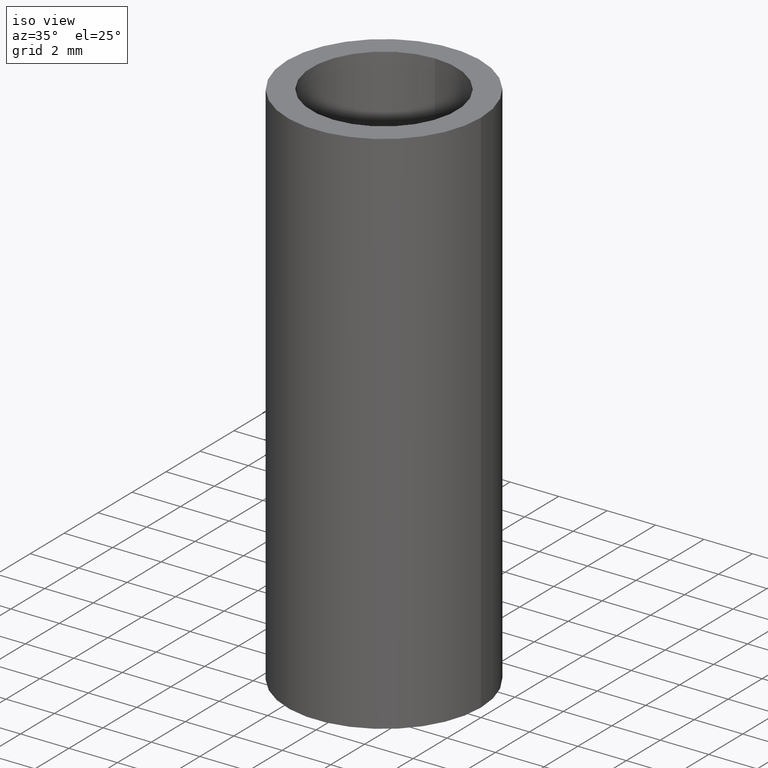
[diagram: clean part render]
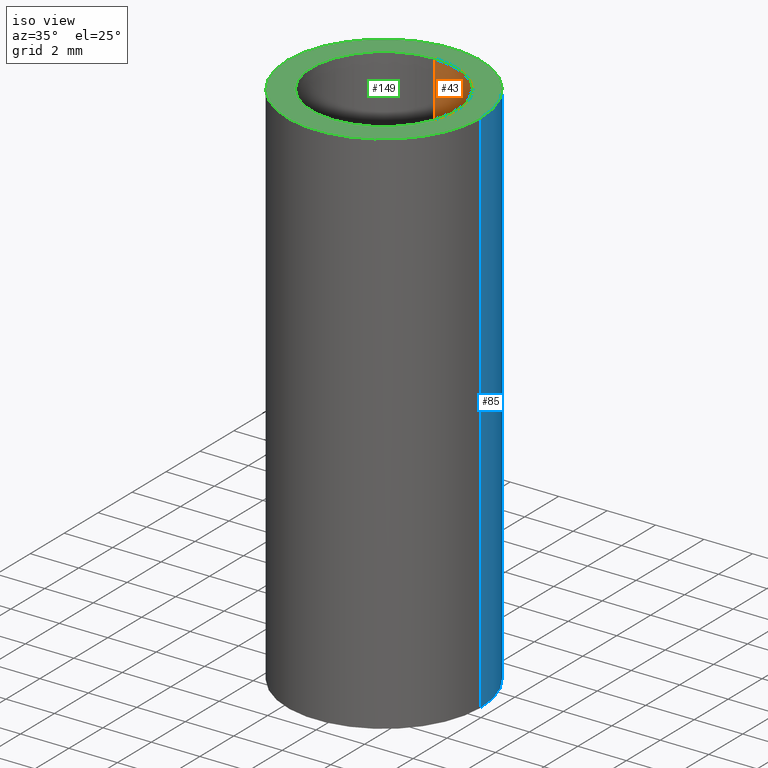
[diagram: same view with three faces highlighted in distinct colors, each labeled with its STEP entity id]
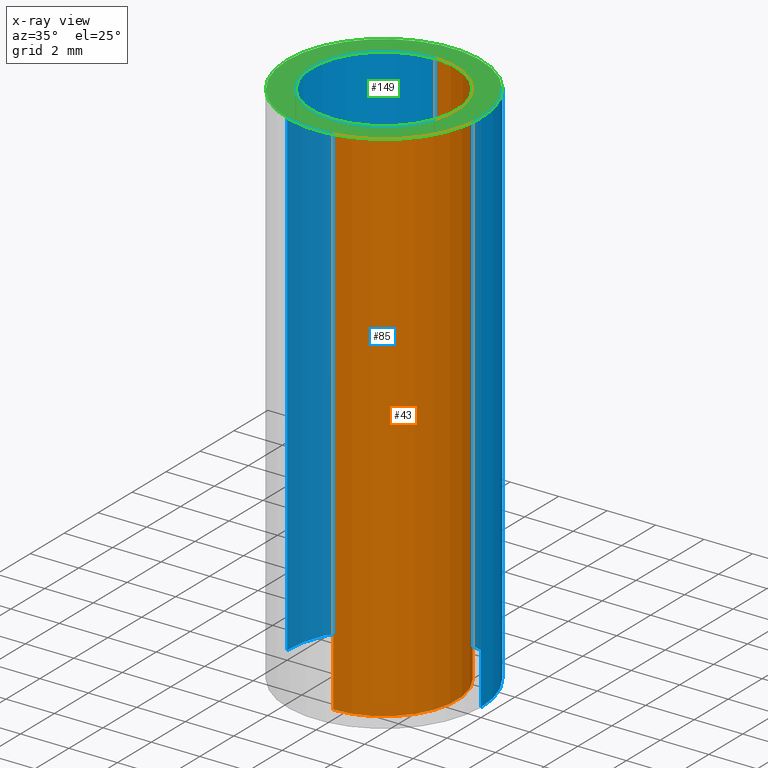
[diagram: x-ray of the same camera — body ghosted, the three highlighted faces saturated]
A machine part, iso view with three faces highlighted in distinct colors.
The next image is the same camera in x-ray (body ghosted, the three faces saturated) — at least one of them is partly hidden behind the body in this view.
Their STEP definitions:

[orange] entity #43 — the highlighted cylindrical surface (partial cylindrical patch) has radius 3 mm, axis along (0, 0, -1).
#2=CARTESIAN_POINT('',(0.0,0.0,22.000000010000001));
#3=DIRECTION('',(0.0,0.0,-1.0));
#4=DIRECTION('',(-1.0,0.0,0.0));
#5=AXIS2_PLACEMENT_3D('',#2,#3,#4);
#6=CYLINDRICAL_SURFACE('',#5,3.0);
#7=CARTESIAN_POINT('',(-3.673940E-016,3.0,22.0));
#8=VERTEX_POINT('',#7);
#9=CARTESIAN_POINT('',(0.0,-3.0,22.0));
#10=VERTEX_POINT('',#9);
#11=CARTESIAN_POINT('',(0.0,0.0,22.0));
#12=DIRECTION('',(0.0,0.0,-1.0));
#13=DIRECTION('',(0.0,-1.0,0.0));
#14=AXIS2_PLACEMENT_3D('',#11,#12,#13);
#15=CIRCLE('',#14,3.0);
#16=EDGE_CURVE('',#8,#10,#15,.T.);
#17=ORIENTED_EDGE('',*,*,#16,.F.);
#18=CARTESIAN_POINT('',(-3.673940E-016,3.0,0.0));
#19=VERTEX_POINT('',#18);
#20=CARTESIAN_POINT('',(-3.673940E-016,3.0,22.0));
#21=DIRECTION('',(0.0,0.0,-1.0));
#22=VECTOR('',#21,22.0);
#23=LINE('',#20,#22);
#24=EDGE_CURVE('',#8,#19,#23,.T.);
#25=ORIENTED_EDGE('',*,*,#24,.T.);
#26=CARTESIAN_POINT('',(0.0,-3.0,0.0));
#27=VERTEX_POINT('',#26);
#28=CARTESIAN_POINT('',(0.0,0.0,0.0));
#29=DIRECTION('',(0.0,0.0,-1.0));
#30=DIRECTION('',(-1.0,0.0,0.0));
#31=AXIS2_PLACEMENT_3D('',#28,#29,#30);
#32=CIRCLE('',#31,3.0);
#33=EDGE_CURVE('',#19,#27,#32,.T.);
#34=ORIENTED_EDGE('',*,*,#33,.T.);
#35=CARTESIAN_POINT('',(0.0,-3.0,22.0));
#36=DIRECTION('',(0.0,0.0,-1.0));
#37=VECTOR('',#36,22.0);
#38=LINE('',#35,#37);
#39=EDGE_CURVE('',#10,#27,#38,.T.);
#40=ORIENTED_EDGE('',*,*,#39,.F.);
#41=EDGE_LOOP('',(#17,#25,#34,#40));
#42=FACE_OUTER_BOUND('',#41,.T.);
#43=ADVANCED_FACE('',(#42),#6,.F.);

[blue] entity #85 — the highlighted cylindrical surface (partial cylindrical patch) has radius 4 mm, axis along (0, 0, 1).
#44=CARTESIAN_POINT('',(0.0,0.0,-1.000000E-008));
#45=DIRECTION('',(0.0,0.0,1.0));
#46=DIRECTION('',(0.0,-1.0,0.0));
#47=AXIS2_PLACEMENT_3D('',#44,#45,#46);
#48=CYLINDRICAL_SURFACE('',#47,4.0);
#49=CARTESIAN_POINT('',(-4.0,4.898587E-016,0.0));
#50=VERTEX_POINT('',#49);
#51=CARTESIAN_POINT('',(4.0,0.0,0.0));
#52=VERTEX_POINT('',#51);
#53=CARTESIAN_POINT('',(0.0,0.0,0.0));
#54=DIRECTION('',(0.0,0.0,-1.0));
#55=DIRECTION('',(1.0,0.0,0.0));
#56=AXIS2_PLACEMENT_3D('',#53,#54,#55);
#57=CIRCLE('',#56,4.0);
#58=EDGE_CURVE('',#50,#52,#57,.T.);
#59=ORIENTED_EDGE('',*,*,#58,.F.);
#60=CARTESIAN_POINT('',(-4.0,4.898587E-016,22.0));
#61=VERTEX_POINT('',#60);
#62=CARTESIAN_POINT('',(-4.0,4.898587E-016,0.0));
#63=DIRECTION('',(0.0,0.0,1.0));
#64=VECTOR('',#63,22.0);
#65=LINE('',#62,#64);
#66=EDGE_CURVE('',#50,#61,#65,.T.);
#67=ORIENTED_EDGE('',*,*,#66,.T.);
#68=CARTESIAN_POINT('',(4.0,0.0,22.0));
#69=VERTEX_POINT('',#68);
#70=CARTESIAN_POINT('',(0.0,0.0,22.0));
#71=DIRECTION('',(0.0,0.0,-1.0));
#72=DIRECTION('',(1.0,0.0,0.0));
#73=AXIS2_PLACEMENT_3D('',#70,#71,#72);
#74=CIRCLE('',#73,4.0);
#75=EDGE_CURVE('',#61,#69,#74,.T.);
#76=ORIENTED_EDGE('',*,*,#75,.T.);
#77=CARTESIAN_POINT('',(4.0,0.0,0.0));
#78=DIRECTION('',(0.0,0.0,1.0));
#79=VECTOR('',#78,22.0);
#80=LINE('',#77,#79);
#81=EDGE_CURVE('',#52,#69,#80,.T.);
#82=ORIENTED_EDGE('',*,*,#81,.F.);
#83=EDGE_LOOP('',(#59,#67,#76,#82));
#84=FACE_OUTER_BOUND('',#83,.T.);
#85=ADVANCED_FACE('',(#84),#48,.T.);

[green] entity #149 — the highlighted planar face has unit normal (0, 0, -1).
#7=CARTESIAN_POINT('',(-3.673940E-016,3.0,22.0));
#8=VERTEX_POINT('',#7);
#9=CARTESIAN_POINT('',(0.0,-3.0,22.0));
#10=VERTEX_POINT('',#9);
#11=CARTESIAN_POINT('',(0.0,0.0,22.0));
#12=DIRECTION('',(0.0,0.0,-1.0));
#13=DIRECTION('',(0.0,-1.0,0.0));
#14=AXIS2_PLACEMENT_3D('',#11,#12,#13);
#15=CIRCLE('',#14,3.0);
#16=EDGE_CURVE('',#8,#10,#15,.T.);
#60=CARTESIAN_POINT('',(-4.0,4.898587E-016,22.0));
#61=VERTEX_POINT('',#60);
#68=CARTESIAN_POINT('',(4.0,0.0,22.0));
#69=VERTEX_POINT('',#68);
#70=CARTESIAN_POINT('',(0.0,0.0,22.0));
#71=DIRECTION('',(0.0,0.0,-1.0));
#72=DIRECTION('',(1.0,0.0,0.0));
#73=AXIS2_PLACEMENT_3D('',#70,#71,#72);
#74=CIRCLE('',#73,4.0);
#75=EDGE_CURVE('',#61,#69,#74,.T.);
#100=CARTESIAN_POINT('',(0.0,0.0,22.0));
#101=DIRECTION('',(0.0,0.0,-1.0));
#102=DIRECTION('',(1.0,0.0,0.0));
#103=AXIS2_PLACEMENT_3D('',#100,#101,#102);
#104=CIRCLE('',#103,4.0);
#105=EDGE_CURVE('',#69,#61,#104,.T.);
#130=CARTESIAN_POINT('',(4.400000000000000,-4.400000000000000,22.0));
#131=DIRECTION('',(0.0,0.0,-1.0));
#132=DIRECTION('',(-1.0,0.0,0.0));
#133=AXIS2_PLACEMENT_3D('',#130,#131,#132);
#134=PLANE('',#133);
#135=ORIENTED_EDGE('',*,*,#105,.F.);
#136=ORIENTED_EDGE('',*,*,#75,.F.);
#137=EDGE_LOOP('',(#135,#136));
#138=FACE_OUTER_BOUND('',#137,.T.);
#139=CARTESIAN_POINT('',(0.0,0.0,22.0));
#140=DIRECTION('',(0.0,0.0,-1.0));
#141=DIRECTION('',(0.0,-1.0,0.0));
#142=AXIS2_PLACEMENT_3D('',#139,#140,#141);
#143=CIRCLE('',#142,3.0);
#144=EDGE_CURVE('',#10,#8,#143,.T.);
#145=ORIENTED_EDGE('',*,*,#144,.T.);
#146=ORIENTED_EDGE('',*,*,#16,.T.);
#147=EDGE_LOOP('',(#145,#146));
#148=FACE_BOUND('',#147,.T.);
#149=ADVANCED_FACE('',(#138,#148),#134,.F.);